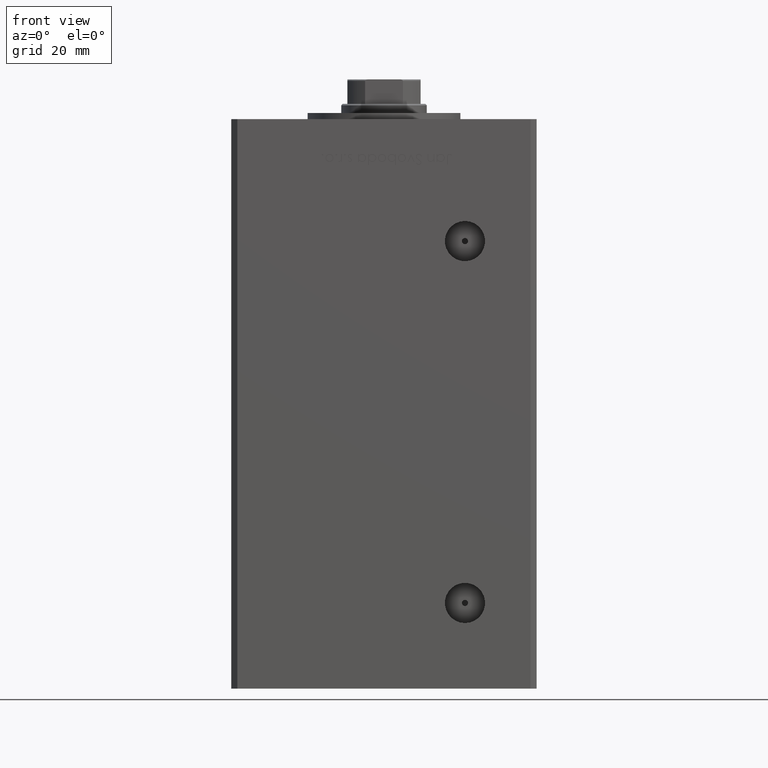
[diagram: clean part render]
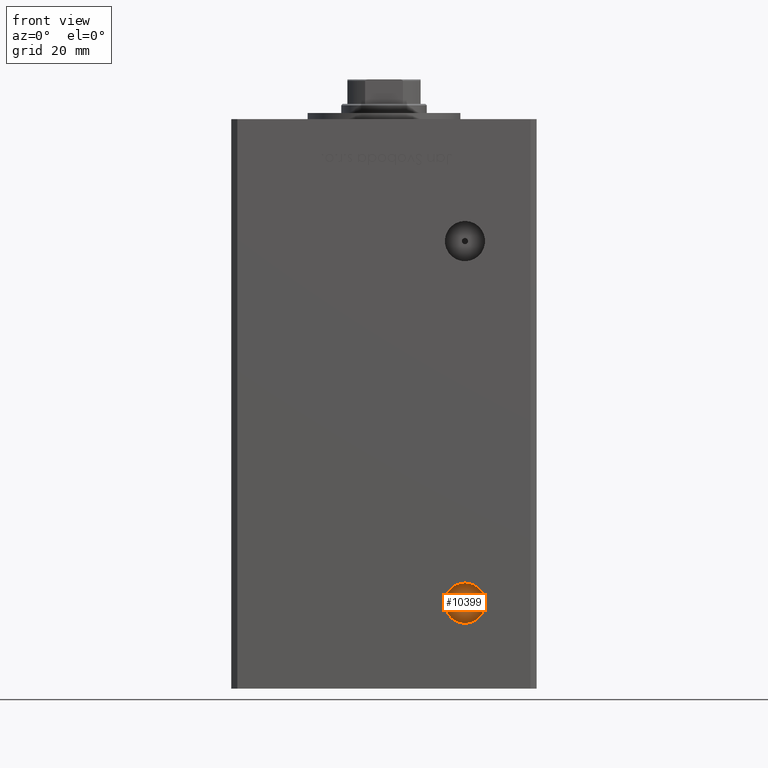
[diagram: same view with one face highlighted and labeled with its STEP entity id]
A machine part, front view. The second image highlights one B-rep face of the part: STEP entity #10399.
In plain terms, the highlighted planar face has unit normal (0, -1, 0).
Its self-contained STEP definition (entity closure, byte-faithful):
#8 = PLANE ( 'NONE',  #43887 ) ;
#263 = CIRCLE ( 'NONE', #41540, 6.579999999999994742 ) ;
#3308 = EDGE_LOOP ( 'NONE', ( #30003, #29395 ) ) ;
#5092 = CARTESIAN_POINT ( 'NONE',  ( 26.49999999999998934, -30.50000000000000000, 10.00000000000000888 ) ) ;
#6232 = CARTESIAN_POINT ( 'NONE',  ( 26.49999999999998934, -30.50000000000000000, 9.000000000000007105 ) ) ;
#6651 = CARTESIAN_POINT ( 'NONE',  ( 26.49999999999998934, -30.50000000000000000, 8.000000000000007105 ) ) ;
#6919 = VERTEX_POINT ( 'NONE', #32944 ) ;
#8987 = VERTEX_POINT ( 'NONE', #25735 ) ;
#10399 = ADVANCED_FACE ( 'NONE', ( #37201, #40108 ), #8, .T. ) ;
#10945 = DIRECTION ( 'NONE',  ( 0.000000000000000000, -1.000000000000000000, 0.000000000000000000 ) ) ;
#13124 = CIRCLE ( 'NONE', #46800, 6.579999999999994742 ) ;
#13892 = DIRECTION ( 'NONE',  ( 0.000000000000000000, -1.000000000000000000, 0.000000000000000000 ) ) ;
#16149 = DIRECTION ( 'NONE',  ( 0.000000000000000000, 0.000000000000000000, -1.000000000000000000 ) ) ;
#17218 = DIRECTION ( 'NONE',  ( 0.000000000000000000, -1.000000000000000000, 0.000000000000000000 ) ) ;
#22756 = VERTEX_POINT ( 'NONE', #5092 ) ;
#23822 = EDGE_CURVE ( 'NONE', #8987, #6919, #263, .T. ) ;
#25735 = CARTESIAN_POINT ( 'NONE',  ( 26.49999999999998934, -30.50000000000000000, 15.58000000000000362 ) ) ;
#26864 = CIRCLE ( 'NONE', #35313, 1.000000000000000888 ) ;
#27047 = DIRECTION ( 'NONE',  ( 0.000000000000000000, 0.000000000000000000, -1.000000000000000000 ) ) ;
#28497 = CARTESIAN_POINT ( 'NONE',  ( 26.49999999999998934, -30.50000000000000000, 9.000000000000007105 ) ) ;
#29395 = ORIENTED_EDGE ( 'NONE', *, *, #50547, .F. ) ;
#30003 = ORIENTED_EDGE ( 'NONE', *, *, #46305, .F. ) ;
#30664 = EDGE_LOOP ( 'NONE', ( #36540, #45612 ) ) ;
#32201 = DIRECTION ( 'NONE',  ( 0.000000000000000000, -1.000000000000000000, 0.000000000000000000 ) ) ;
#32481 = AXIS2_PLACEMENT_3D ( 'NONE', #6232, #13892, #33706 ) ;
#32658 = EDGE_CURVE ( 'NONE', #6919, #8987, #13124, .T. ) ;
#32944 = CARTESIAN_POINT ( 'NONE',  ( 26.49999999999998934, -30.50000000000000000, 2.420000000000013252 ) ) ;
#33706 = DIRECTION ( 'NONE',  ( 0.000000000000000000, 0.000000000000000000, -1.000000000000000000 ) ) ;
#34718 = DIRECTION ( 'NONE',  ( 0.000000000000000000, -1.000000000000000000, 0.000000000000000000 ) ) ;
#34999 = CIRCLE ( 'NONE', #32481, 1.000000000000000888 ) ;
#35313 = AXIS2_PLACEMENT_3D ( 'NONE', #43417, #10945, #27047 ) ;
#36540 = ORIENTED_EDGE ( 'NONE', *, *, #32658, .T. ) ;
#37201 = FACE_BOUND ( 'NONE', #3308, .T. ) ;
#40108 = FACE_OUTER_BOUND ( 'NONE', #30664, .T. ) ;
#41231 = DIRECTION ( 'NONE',  ( 0.000000000000000000, 0.000000000000000000, -1.000000000000000000 ) ) ;
#41540 = AXIS2_PLACEMENT_3D ( 'NONE', #50784, #34718, #16149 ) ;
#43417 = CARTESIAN_POINT ( 'NONE',  ( 26.49999999999998934, -30.50000000000000000, 9.000000000000007105 ) ) ;
#43887 = AXIS2_PLACEMENT_3D ( 'NONE', #28497, #32201, #48277 ) ;
#44686 = CARTESIAN_POINT ( 'NONE',  ( 26.49999999999998934, -30.50000000000000000, 9.000000000000007105 ) ) ;
#45612 = ORIENTED_EDGE ( 'NONE', *, *, #23822, .T. ) ;
#46305 = EDGE_CURVE ( 'NONE', #47463, #22756, #26864, .T. ) ;
#46800 = AXIS2_PLACEMENT_3D ( 'NONE', #44686, #17218, #41231 ) ;
#47463 = VERTEX_POINT ( 'NONE', #6651 ) ;
#48277 = DIRECTION ( 'NONE',  ( 0.000000000000000000, -0.000000000000000000, -1.000000000000000000 ) ) ;
#50547 = EDGE_CURVE ( 'NONE', #22756, #47463, #34999, .T. ) ;
#50784 = CARTESIAN_POINT ( 'NONE',  ( 26.49999999999998934, -30.50000000000000000, 9.000000000000007105 ) ) ;